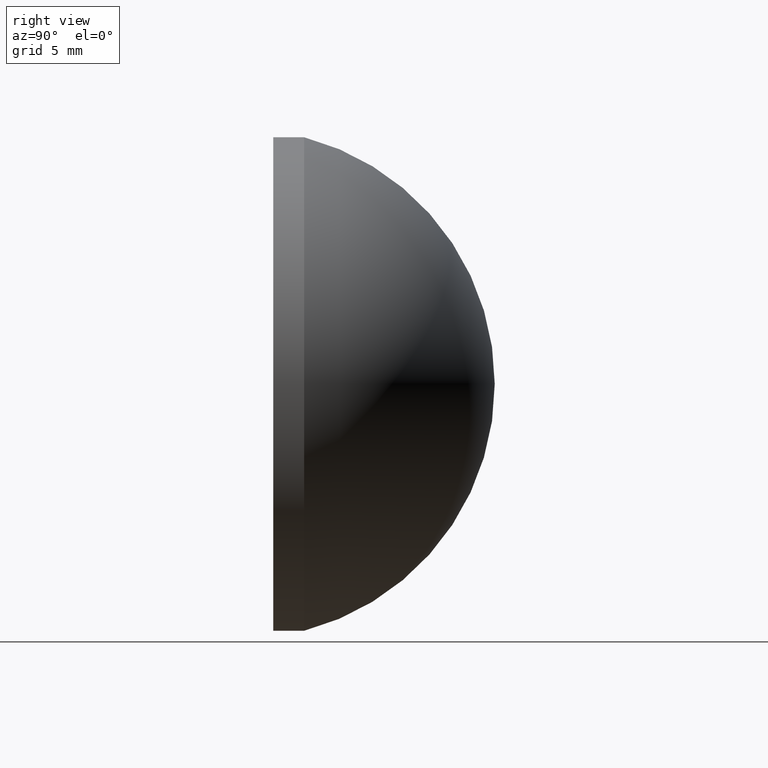
[diagram: clean part render]
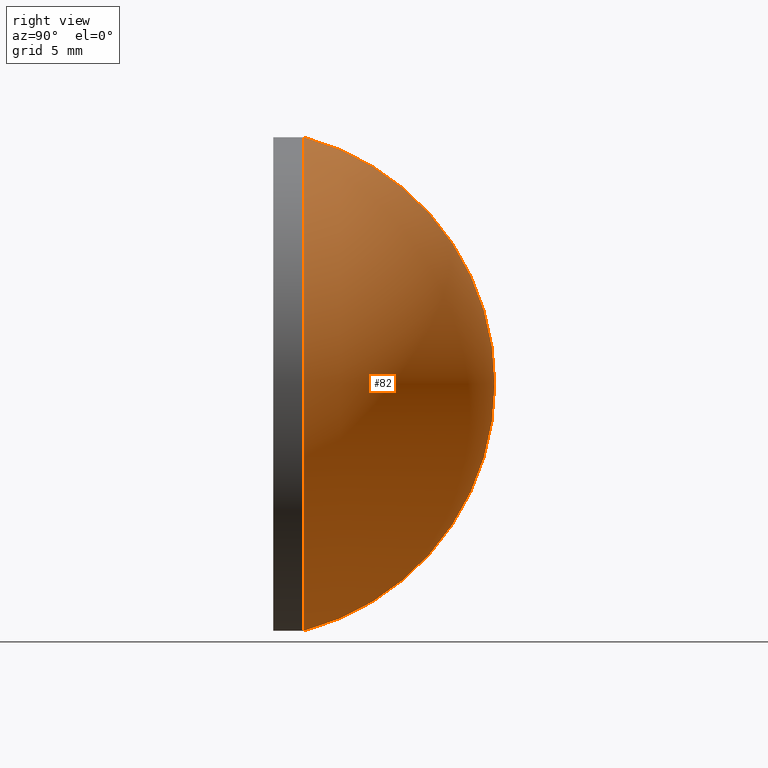
[diagram: same view with one face highlighted and labeled with its STEP entity id]
A machine part, right view. The second image highlights one B-rep face of the part: STEP entity #82.
In plain terms, the highlighted toroidal blend (fillet) surface has major radius 0 mm and minor (blend) radius 20.67 mm.
Its self-contained STEP definition (entity closure, byte-faithful):
#2 = AXIS2_PLACEMENT_3D ( 'NONE', #152, #191, #124 ) ;
#8 = CARTESIAN_POINT ( 'NONE',  ( 0.000000000000000000, -2.719999999996280948, -1.249999703745174884E-05 ) ) ;
#13 = AXIS2_PLACEMENT_3D ( 'NONE', #113, #65, #100 ) ;
#20 = EDGE_CURVE ( 'NONE', #181, #27, #119, .T. ) ;
#27 = VERTEX_POINT ( 'NONE', #76 ) ;
#28 = EDGE_CURVE ( 'NONE', #139, #27, #200, .T. ) ;
#33 = DIRECTION ( 'NONE',  ( 0.000000000000000000, 0.000000000000000000, 1.000000000000000000 ) ) ;
#54 = EDGE_LOOP ( 'NONE', ( #158, #179, #157 ) ) ;
#65 = DIRECTION ( 'NONE',  ( -0.000000000000000000, 1.000000000000000000, -0.000000000000000000 ) ) ;
#70 = DIRECTION ( 'NONE',  ( -1.000000000000000000, 0.000000000000000000, 0.000000000000000000 ) ) ;
#76 = CARTESIAN_POINT ( 'NONE',  ( 0.000000000000000000, 17.94999999999999929, 0.000000000000000000 ) ) ;
#82 = ADVANCED_FACE ( 'NONE', ( #97 ), #187, .T. ) ;
#97 = FACE_OUTER_BOUND ( 'NONE', #54, .T. ) ;
#100 = DIRECTION ( 'NONE',  ( 0.000000000000000000, 0.000000000000000000, 1.000000000000000000 ) ) ;
#105 = AXIS2_PLACEMENT_3D ( 'NONE', #8, #70, #194 ) ;
#113 = CARTESIAN_POINT ( 'NONE',  ( 0.000000000000000000, 2.499999999999996891, 0.000000000000000000 ) ) ;
#119 = CIRCLE ( 'NONE', #105, 20.67000000000001592 ) ;
#124 = DIRECTION ( 'NONE',  ( 1.224646799147353207E-16, 0.000000000000000000, -1.000000000000000000 ) ) ;
#129 = AXIS2_PLACEMENT_3D ( 'NONE', #166, #153, #33 ) ;
#139 = VERTEX_POINT ( 'NONE', #163 ) ;
#152 = CARTESIAN_POINT ( 'NONE',  ( -1.530808136126668131E-21, -2.719999999996280948, 1.249999703745174884E-05 ) ) ;
#153 = DIRECTION ( 'NONE',  ( -0.000000000000000000, 1.000000000000000000, -0.000000000000000000 ) ) ;
#156 = EDGE_CURVE ( 'NONE', #181, #139, #174, .T. ) ;
#157 = ORIENTED_EDGE ( 'NONE', *, *, #20, .F. ) ;
#158 = ORIENTED_EDGE ( 'NONE', *, *, #156, .T. ) ;
#163 = CARTESIAN_POINT ( 'NONE',  ( 2.449293598294709274E-15, 2.499999999999996891, -20.00000000000002132 ) ) ;
#166 = CARTESIAN_POINT ( 'NONE',  ( 0.000000000000000000, -2.719999999996280948, 0.000000000000000000 ) ) ;
#174 = CIRCLE ( 'NONE', #13, 20.00000000000000000 ) ;
#179 = ORIENTED_EDGE ( 'NONE', *, *, #28, .T. ) ;
#181 = VERTEX_POINT ( 'NONE', #197 ) ;
#187 = TOROIDAL_SURFACE ( 'NONE', #129, -1.249999703745174884E-05, 20.67000000000001592 ) ;
#191 = DIRECTION ( 'NONE',  ( 1.000000000000000000, 0.000000000000000000, 1.224646799147353207E-16 ) ) ;
#194 = DIRECTION ( 'NONE',  ( 0.000000000000000000, 0.000000000000000000, 1.000000000000000000 ) ) ;
#197 = CARTESIAN_POINT ( 'NONE',  ( 0.000000000000000000, 2.499999999999996891, 20.00000000000002132 ) ) ;
#200 = CIRCLE ( 'NONE', #2, 20.67000000000001592 ) ;